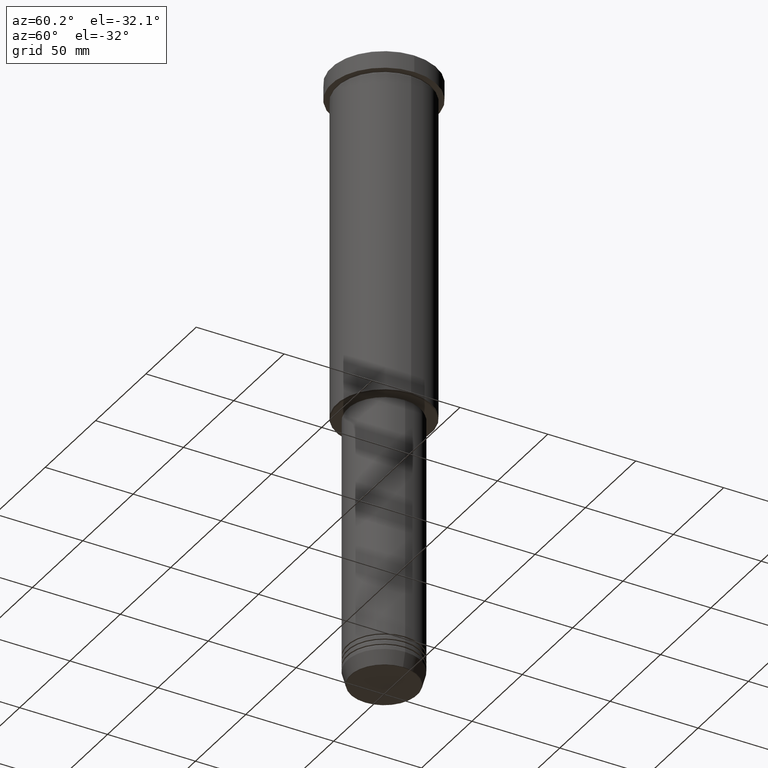
[diagram: clean part render]
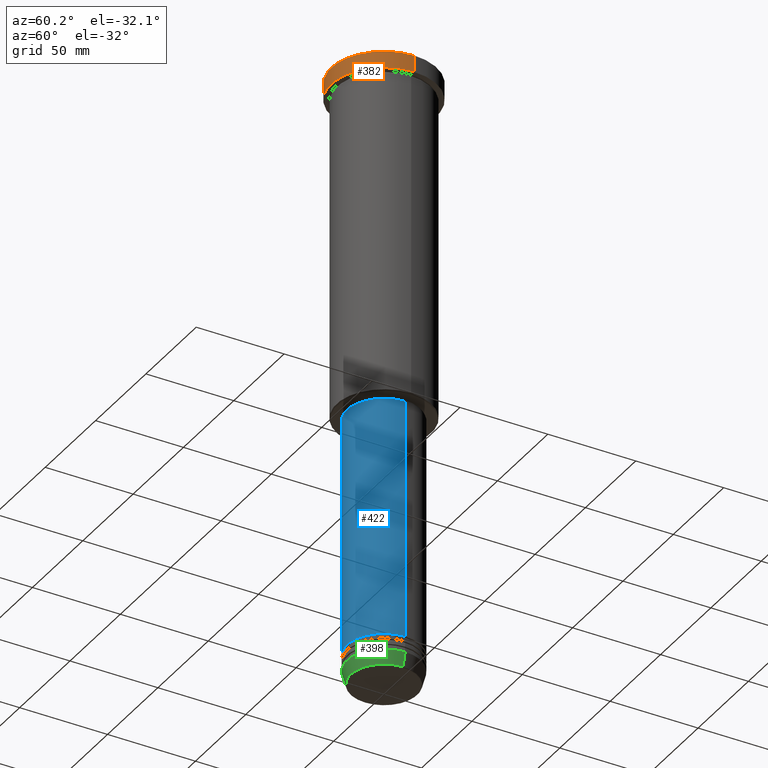
[diagram: same view with three faces highlighted in distinct colors, each labeled with its STEP entity id]
A machine part, auxiliary view with three faces highlighted in distinct colors.
Their STEP definitions:

[orange] entity #382 — the highlighted cylindrical surface (partial cylindrical patch) has radius 30 mm, axis along (-0, -0, 1).
#16 = DIRECTION ( 'NONE',  ( 1.000000000000000000, 0.000000000000000000, 0.000000000000000000 ) ) ;
#37 = CARTESIAN_POINT ( 'NONE',  ( 0.000000000000000000, 0.000000000000000000, 0.000000000000000000 ) ) ;
#41 = CARTESIAN_POINT ( 'NONE',  ( -30.00000000000000000, 3.673940397442059178E-15, 0.000000000000000000 ) ) ;
#56 = VECTOR ( 'NONE', #1062, 1000.000000000000000 ) ;
#67 = DIRECTION ( 'NONE',  ( -0.000000000000000000, -0.000000000000000000, 1.000000000000000000 ) ) ;
#75 = EDGE_LOOP ( 'NONE', ( #1170, #942, #454, #289 ) ) ;
#81 = VERTEX_POINT ( 'NONE', #443 ) ;
#174 = VERTEX_POINT ( 'NONE', #941 ) ;
#212 = CARTESIAN_POINT ( 'NONE',  ( 30.00000000000000000, 0.000000000000000000, -0.5000000000000073275 ) ) ;
#289 = ORIENTED_EDGE ( 'NONE', *, *, #1101, .T. ) ;
#324 = VERTEX_POINT ( 'NONE', #1137 ) ;
#353 = CIRCLE ( 'NONE', #505, 30.00000000000000000 ) ;
#366 = AXIS2_PLACEMENT_3D ( 'NONE', #37, #67, #441 ) ;
#382 = ADVANCED_FACE ( 'NONE', ( #972 ), #527, .T. ) ;
#434 = CARTESIAN_POINT ( 'NONE',  ( 0.000000000000000000, 0.000000000000000000, -9.999999999999992895 ) ) ;
#441 = DIRECTION ( 'NONE',  ( 1.000000000000000000, 0.000000000000000000, 0.000000000000000000 ) ) ;
#443 = CARTESIAN_POINT ( 'NONE',  ( -30.00000000000000000, 3.673940397442059178E-15, -0.5000000000000073275 ) ) ;
#454 = ORIENTED_EDGE ( 'NONE', *, *, #758, .T. ) ;
#494 = DIRECTION ( 'NONE',  ( 1.000000000000000000, 0.000000000000000000, 0.000000000000000000 ) ) ;
#505 = AXIS2_PLACEMENT_3D ( 'NONE', #434, #954, #494 ) ;
#527 = CYLINDRICAL_SURFACE ( 'NONE', #366, 30.00000000000000000 ) ;
#616 = VECTOR ( 'NONE', #780, 1000.000000000000000 ) ;
#689 = EDGE_CURVE ( 'NONE', #174, #81, #1128, .T. ) ;
#730 = CIRCLE ( 'NONE', #1145, 30.00000000000000000 ) ;
#745 = DIRECTION ( 'NONE',  ( 0.000000000000000000, 0.000000000000000000, -1.000000000000000000 ) ) ;
#758 = EDGE_CURVE ( 'NONE', #324, #1010, #1051, .T. ) ;
#773 = CARTESIAN_POINT ( 'NONE',  ( 30.00000000000000000, 0.000000000000000000, 0.000000000000000000 ) ) ;
#780 = DIRECTION ( 'NONE',  ( -0.000000000000000000, -0.000000000000000000, 1.000000000000000000 ) ) ;
#786 = EDGE_CURVE ( 'NONE', #174, #324, #353, .T. ) ;
#941 = CARTESIAN_POINT ( 'NONE',  ( -30.00000000000000000, 3.673940397442059178E-15, -9.999999999999992895 ) ) ;
#942 = ORIENTED_EDGE ( 'NONE', *, *, #786, .T. ) ;
#954 = DIRECTION ( 'NONE',  ( -0.000000000000000000, -0.000000000000000000, 1.000000000000000000 ) ) ;
#972 = FACE_OUTER_BOUND ( 'NONE', #75, .T. ) ;
#1010 = VERTEX_POINT ( 'NONE', #212 ) ;
#1051 = LINE ( 'NONE', #773, #56 ) ;
#1062 = DIRECTION ( 'NONE',  ( -0.000000000000000000, -0.000000000000000000, 1.000000000000000000 ) ) ;
#1095 = CARTESIAN_POINT ( 'NONE',  ( 0.000000000000000000, 0.000000000000000000, -0.5000000000000073275 ) ) ;
#1101 = EDGE_CURVE ( 'NONE', #1010, #81, #730, .T. ) ;
#1128 = LINE ( 'NONE', #41, #616 ) ;
#1137 = CARTESIAN_POINT ( 'NONE',  ( 30.00000000000000000, 0.000000000000000000, -9.999999999999992895 ) ) ;
#1145 = AXIS2_PLACEMENT_3D ( 'NONE', #1095, #745, #16 ) ;
#1170 = ORIENTED_EDGE ( 'NONE', *, *, #689, .F. ) ;

[blue] entity #422 — the highlighted cylindrical surface (partial cylindrical patch) has radius 21 mm, axis along (-0, -0, 1).
#9 = DIRECTION ( 'NONE',  ( -0.000000000000000000, -0.000000000000000000, 1.000000000000000000 ) ) ;
#49 = CYLINDRICAL_SURFACE ( 'NONE', #221, 21.00000000000000000 ) ;
#55 = AXIS2_PLACEMENT_3D ( 'NONE', #276, #196, #456 ) ;
#100 = CARTESIAN_POINT ( 'NONE',  ( 0.000000000000000000, 0.000000000000000000, -196.9999999999999432 ) ) ;
#112 = DIRECTION ( 'NONE',  ( -0.000000000000000000, -0.000000000000000000, 1.000000000000000000 ) ) ;
#142 = AXIS2_PLACEMENT_3D ( 'NONE', #100, #473, #821 ) ;
#154 = EDGE_LOOP ( 'NONE', ( #881, #188, #1099, #436 ) ) ;
#184 = CARTESIAN_POINT ( 'NONE',  ( 21.00000000000000000, 0.000000000000000000, -334.0000000000000000 ) ) ;
#188 = ORIENTED_EDGE ( 'NONE', *, *, #547, .T. ) ;
#196 = DIRECTION ( 'NONE',  ( -0.000000000000000000, -0.000000000000000000, 1.000000000000000000 ) ) ;
#221 = AXIS2_PLACEMENT_3D ( 'NONE', #427, #343, #886 ) ;
#276 = CARTESIAN_POINT ( 'NONE',  ( 0.000000000000000000, 0.000000000000000000, -334.0000000000000000 ) ) ;
#279 = VERTEX_POINT ( 'NONE', #495 ) ;
#343 = DIRECTION ( 'NONE',  ( -0.000000000000000000, -0.000000000000000000, 1.000000000000000000 ) ) ;
#378 = CARTESIAN_POINT ( 'NONE',  ( -21.00000000000000000, 2.571758278209441661E-15, 0.000000000000000000 ) ) ;
#422 = ADVANCED_FACE ( 'NONE', ( #514 ), #49, .T. ) ;
#427 = CARTESIAN_POINT ( 'NONE',  ( 0.000000000000000000, 0.000000000000000000, 0.000000000000000000 ) ) ;
#436 = ORIENTED_EDGE ( 'NONE', *, *, #672, .F. ) ;
#456 = DIRECTION ( 'NONE',  ( 1.000000000000000000, 0.000000000000000000, 0.000000000000000000 ) ) ;
#473 = DIRECTION ( 'NONE',  ( -0.000000000000000000, -0.000000000000000000, 1.000000000000000000 ) ) ;
#477 = LINE ( 'NONE', #827, #799 ) ;
#495 = CARTESIAN_POINT ( 'NONE',  ( 21.00000000000000000, 0.000000000000000000, -196.9999999999999432 ) ) ;
#502 = CIRCLE ( 'NONE', #142, 21.00000000000000000 ) ;
#514 = FACE_OUTER_BOUND ( 'NONE', #154, .T. ) ;
#547 = EDGE_CURVE ( 'NONE', #1134, #548, #1048, .T. ) ;
#548 = VERTEX_POINT ( 'NONE', #184 ) ;
#659 = CARTESIAN_POINT ( 'NONE',  ( -21.00000000000000000, 2.571758278209441661E-15, -334.0000000000000000 ) ) ;
#672 = EDGE_CURVE ( 'NONE', #921, #279, #502, .T. ) ;
#673 = EDGE_CURVE ( 'NONE', #548, #279, #477, .T. ) ;
#799 = VECTOR ( 'NONE', #9, 1000.000000000000000 ) ;
#817 = LINE ( 'NONE', #378, #955 ) ;
#821 = DIRECTION ( 'NONE',  ( 1.000000000000000000, 0.000000000000000000, 0.000000000000000000 ) ) ;
#827 = CARTESIAN_POINT ( 'NONE',  ( 21.00000000000000000, 0.000000000000000000, 0.000000000000000000 ) ) ;
#881 = ORIENTED_EDGE ( 'NONE', *, *, #1058, .F. ) ;
#886 = DIRECTION ( 'NONE',  ( 1.000000000000000000, 0.000000000000000000, 0.000000000000000000 ) ) ;
#921 = VERTEX_POINT ( 'NONE', #984 ) ;
#955 = VECTOR ( 'NONE', #112, 1000.000000000000000 ) ;
#984 = CARTESIAN_POINT ( 'NONE',  ( -21.00000000000000000, 2.571758278209441661E-15, -196.9999999999999432 ) ) ;
#1048 = CIRCLE ( 'NONE', #55, 21.00000000000000000 ) ;
#1058 = EDGE_CURVE ( 'NONE', #1134, #921, #817, .T. ) ;
#1099 = ORIENTED_EDGE ( 'NONE', *, *, #673, .T. ) ;
#1134 = VERTEX_POINT ( 'NONE', #659 ) ;

[green] entity #398 — the highlighted conical surface has half-angle 15 deg.
#54 = ORIENTED_EDGE ( 'NONE', *, *, #621, .T. ) ;
#229 = CARTESIAN_POINT ( 'NONE',  ( -18.95570587970606624, 2.446581365662755730E-15, -350.6294095225512706 ) ) ;
#266 = VERTEX_POINT ( 'NONE', #229 ) ;
#315 = CARTESIAN_POINT ( 'NONE',  ( -21.00000000000000000, 2.571758278209441661E-15, -343.0000000000000000 ) ) ;
#351 = CONICAL_SURFACE ( 'NONE', #743, 21.00000000000000000, 0.2617993877991499629 ) ;
#362 = EDGE_CURVE ( 'NONE', #562, #1160, #928, .T. ) ;
#379 = CARTESIAN_POINT ( 'NONE',  ( 21.00000000000000000, 0.000000000000000000, -343.0000000000000000 ) ) ;
#398 = ADVANCED_FACE ( 'NONE', ( #947 ), #351, .T. ) ;
#400 = DIRECTION ( 'NONE',  ( -0.000000000000000000, -0.000000000000000000, 1.000000000000000000 ) ) ;
#413 = CARTESIAN_POINT ( 'NONE',  ( 0.000000000000000000, 0.000000000000000000, -343.0000000000000000 ) ) ;
#428 = VECTOR ( 'NONE', #1109, 1000.000000000000114 ) ;
#476 = LINE ( 'NONE', #1090, #581 ) ;
#484 = AXIS2_PLACEMENT_3D ( 'NONE', #583, #400, #913 ) ;
#491 = LINE ( 'NONE', #379, #428 ) ;
#562 = VERTEX_POINT ( 'NONE', #315 ) ;
#581 = VECTOR ( 'NONE', #1018, 1000.000000000000114 ) ;
#583 = CARTESIAN_POINT ( 'NONE',  ( 0.000000000000000000, 0.000000000000000000, -350.6294095225512706 ) ) ;
#613 = DIRECTION ( 'NONE',  ( 1.000000000000000000, 0.000000000000000000, 0.000000000000000000 ) ) ;
#621 = EDGE_CURVE ( 'NONE', #950, #1160, #491, .T. ) ;
#629 = EDGE_CURVE ( 'NONE', #266, #950, #832, .T. ) ;
#680 = CARTESIAN_POINT ( 'NONE',  ( 0.000000000000000000, 0.000000000000000000, -343.0000000000000000 ) ) ;
#685 = DIRECTION ( 'NONE',  ( -0.000000000000000000, -0.000000000000000000, 1.000000000000000000 ) ) ;
#735 = CARTESIAN_POINT ( 'NONE',  ( 21.00000000000000000, 0.000000000000000000, -343.0000000000000000 ) ) ;
#743 = AXIS2_PLACEMENT_3D ( 'NONE', #413, #685, #771 ) ;
#754 = EDGE_LOOP ( 'NONE', ( #1120, #1080, #54, #793 ) ) ;
#771 = DIRECTION ( 'NONE',  ( 1.000000000000000000, 0.000000000000000000, 0.000000000000000000 ) ) ;
#793 = ORIENTED_EDGE ( 'NONE', *, *, #362, .F. ) ;
#832 = CIRCLE ( 'NONE', #484, 18.95570587970606624 ) ;
#913 = DIRECTION ( 'NONE',  ( 1.000000000000000000, 0.000000000000000000, 0.000000000000000000 ) ) ;
#927 = AXIS2_PLACEMENT_3D ( 'NONE', #680, #957, #613 ) ;
#928 = CIRCLE ( 'NONE', #927, 21.00000000000000000 ) ;
#947 = FACE_OUTER_BOUND ( 'NONE', #754, .T. ) ;
#950 = VERTEX_POINT ( 'NONE', #981 ) ;
#957 = DIRECTION ( 'NONE',  ( -0.000000000000000000, -0.000000000000000000, 1.000000000000000000 ) ) ;
#981 = CARTESIAN_POINT ( 'NONE',  ( 18.95570587970606624, 0.000000000000000000, -350.6294095225512706 ) ) ;
#1018 = DIRECTION ( 'NONE',  ( -0.2588190451025212391, 3.169619151431771721E-17, 0.9659258262890680902 ) ) ;
#1080 = ORIENTED_EDGE ( 'NONE', *, *, #629, .T. ) ;
#1090 = CARTESIAN_POINT ( 'NONE',  ( -21.00000000000000000, 2.571758278209441661E-15, -343.0000000000000000 ) ) ;
#1109 = DIRECTION ( 'NONE',  ( 0.2588190451025212391, 0.000000000000000000, 0.9659258262890680902 ) ) ;
#1120 = ORIENTED_EDGE ( 'NONE', *, *, #1173, .F. ) ;
#1160 = VERTEX_POINT ( 'NONE', #735 ) ;
#1173 = EDGE_CURVE ( 'NONE', #266, #562, #476, .T. ) ;